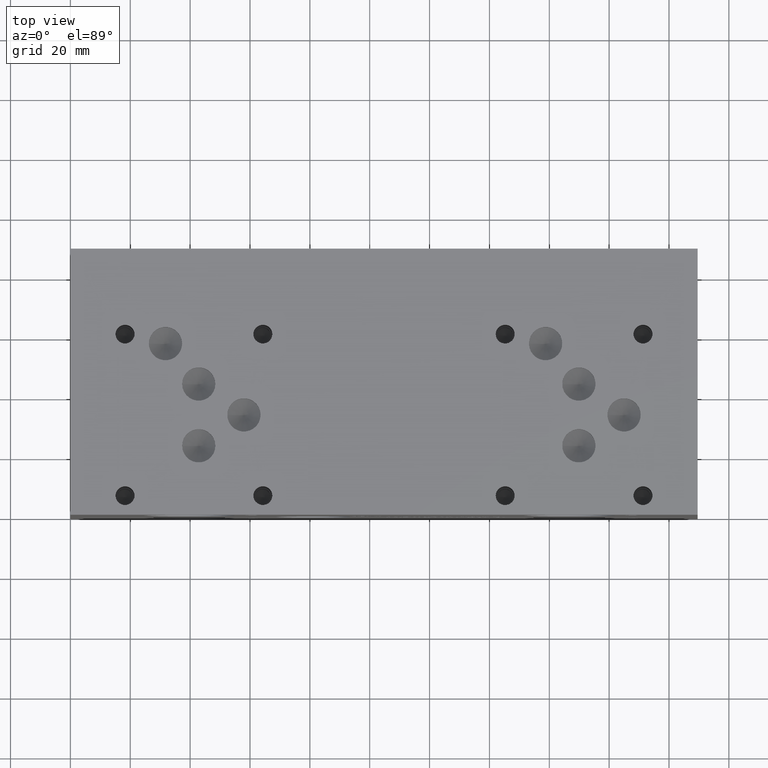
[diagram: clean part render]
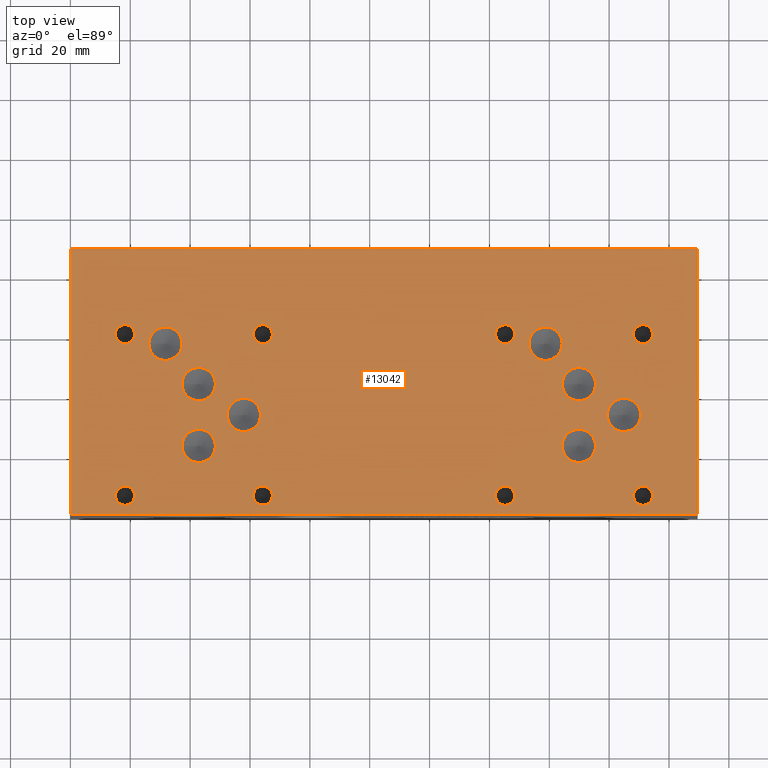
[diagram: same view with one face highlighted and labeled with its STEP entity id]
A machine part, top view. The second image highlights one B-rep face of the part: STEP entity #13042.
In plain terms, the highlighted planar face has unit normal (0, 0, 1).
Its self-contained STEP definition (entity closure, byte-faithful):
#208=CIRCLE('',#13443,5.5626);
#209=CIRCLE('',#13444,5.5626);
#212=CIRCLE('',#13449,5.5626);
#213=CIRCLE('',#13450,5.5626);
#216=CIRCLE('',#13455,5.5626);
#217=CIRCLE('',#13456,5.5626);
#220=CIRCLE('',#13461,5.5626);
#221=CIRCLE('',#13462,5.5626);
#224=CIRCLE('',#13467,5.5626);
#225=CIRCLE('',#13468,5.5626);
#228=CIRCLE('',#13473,5.5626);
#229=CIRCLE('',#13474,5.5626);
#232=CIRCLE('',#13479,5.5626);
#233=CIRCLE('',#13480,5.5626);
#236=CIRCLE('',#13485,5.5626);
#237=CIRCLE('',#13486,5.5626);
#243=CIRCLE('',#13495,3.175);
#244=CIRCLE('',#13496,3.175);
#250=CIRCLE('',#13506,3.175);
#251=CIRCLE('',#13507,3.175);
#257=CIRCLE('',#13517,3.175);
#258=CIRCLE('',#13518,3.175);
#264=CIRCLE('',#13528,3.175);
#265=CIRCLE('',#13529,3.175);
#271=CIRCLE('',#13539,3.175);
#272=CIRCLE('',#13540,3.175);
#278=CIRCLE('',#13550,3.175);
#279=CIRCLE('',#13551,3.175);
#285=CIRCLE('',#13561,3.175);
#286=CIRCLE('',#13562,3.175);
#292=CIRCLE('',#13572,3.175);
#293=CIRCLE('',#13573,3.175);
#565=FACE_BOUND('',#2549,.T.);
#566=FACE_BOUND('',#2550,.T.);
#567=FACE_BOUND('',#2551,.T.);
#568=FACE_BOUND('',#2552,.T.);
#569=FACE_BOUND('',#2553,.T.);
#570=FACE_BOUND('',#2554,.T.);
#571=FACE_BOUND('',#2555,.T.);
#572=FACE_BOUND('',#2556,.T.);
#573=FACE_BOUND('',#2557,.T.);
#574=FACE_BOUND('',#2558,.T.);
#575=FACE_BOUND('',#2559,.T.);
#576=FACE_BOUND('',#2560,.T.);
#577=FACE_BOUND('',#2561,.T.);
#578=FACE_BOUND('',#2562,.T.);
#579=FACE_BOUND('',#2563,.T.);
#580=FACE_BOUND('',#2564,.T.);
#1779=FACE_OUTER_BOUND('',#2548,.T.);
#2548=EDGE_LOOP('',(#11493,#11494,#11495,#11496));
#2549=EDGE_LOOP('',(#11497,#11498));
#2550=EDGE_LOOP('',(#11499,#11500));
#2551=EDGE_LOOP('',(#11501,#11502));
#2552=EDGE_LOOP('',(#11503,#11504));
#2553=EDGE_LOOP('',(#11505,#11506));
#2554=EDGE_LOOP('',(#11507,#11508));
#2555=EDGE_LOOP('',(#11509,#11510));
#2556=EDGE_LOOP('',(#11511,#11512));
#2557=EDGE_LOOP('',(#11513,#11514));
#2558=EDGE_LOOP('',(#11515,#11516));
#2559=EDGE_LOOP('',(#11517,#11518));
#2560=EDGE_LOOP('',(#11519,#11520));
#2561=EDGE_LOOP('',(#11521,#11522));
#2562=EDGE_LOOP('',(#11523,#11524));
#2563=EDGE_LOOP('',(#11525,#11526));
#2564=EDGE_LOOP('',(#11527,#11528));
#2848=LINE('',#19082,#3993);
#3483=LINE('',#21387,#4628);
#3541=LINE('',#21658,#4686);
#3710=LINE('',#22653,#4855);
#3993=VECTOR('',#14295,10.);
#4628=VECTOR('',#15394,10.);
#4686=VECTOR('',#15506,10.);
#4855=VECTOR('',#16641,10.);
#5190=VERTEX_POINT('',#19079);
#5191=VERTEX_POINT('',#19081);
#5701=VERTEX_POINT('',#21385);
#5759=VERTEX_POINT('',#21657);
#5812=VERTEX_POINT('',#21803);
#5813=VERTEX_POINT('',#21804);
#5817=VERTEX_POINT('',#21816);
#5818=VERTEX_POINT('',#21817);
#5822=VERTEX_POINT('',#21829);
#5823=VERTEX_POINT('',#21830);
#5827=VERTEX_POINT('',#21842);
#5828=VERTEX_POINT('',#21843);
#5832=VERTEX_POINT('',#21855);
#5833=VERTEX_POINT('',#21856);
#5837=VERTEX_POINT('',#21868);
#5838=VERTEX_POINT('',#21869);
#5842=VERTEX_POINT('',#21881);
#5843=VERTEX_POINT('',#21882);
#5847=VERTEX_POINT('',#21894);
#5848=VERTEX_POINT('',#21895);
#5855=VERTEX_POINT('',#21914);
#5856=VERTEX_POINT('',#21915);
#5863=VERTEX_POINT('',#21936);
#5864=VERTEX_POINT('',#21937);
#5871=VERTEX_POINT('',#21958);
#5872=VERTEX_POINT('',#21959);
#5879=VERTEX_POINT('',#21980);
#5880=VERTEX_POINT('',#21981);
#5887=VERTEX_POINT('',#22002);
#5888=VERTEX_POINT('',#22003);
#5895=VERTEX_POINT('',#22024);
#5896=VERTEX_POINT('',#22025);
#5903=VERTEX_POINT('',#22046);
#5904=VERTEX_POINT('',#22047);
#5911=VERTEX_POINT('',#22068);
#5912=VERTEX_POINT('',#22069);
#6603=EDGE_CURVE('',#5191,#5190,#2848,.T.);
#7364=EDGE_CURVE('',#5190,#5701,#3483,.T.);
#7446=EDGE_CURVE('',#5759,#5191,#3541,.T.);
#7516=EDGE_CURVE('',#5812,#5813,#208,.T.);
#7517=EDGE_CURVE('',#5813,#5812,#209,.T.);
#7522=EDGE_CURVE('',#5817,#5818,#212,.T.);
#7523=EDGE_CURVE('',#5818,#5817,#213,.T.);
#7528=EDGE_CURVE('',#5822,#5823,#216,.T.);
#7529=EDGE_CURVE('',#5823,#5822,#217,.T.);
#7534=EDGE_CURVE('',#5827,#5828,#220,.T.);
#7535=EDGE_CURVE('',#5828,#5827,#221,.T.);
#7540=EDGE_CURVE('',#5832,#5833,#224,.T.);
#7541=EDGE_CURVE('',#5833,#5832,#225,.T.);
#7546=EDGE_CURVE('',#5837,#5838,#228,.T.);
#7547=EDGE_CURVE('',#5838,#5837,#229,.T.);
#7552=EDGE_CURVE('',#5842,#5843,#232,.T.);
#7553=EDGE_CURVE('',#5843,#5842,#233,.T.);
#7558=EDGE_CURVE('',#5847,#5848,#236,.T.);
#7559=EDGE_CURVE('',#5848,#5847,#237,.T.);
#7567=EDGE_CURVE('',#5855,#5856,#243,.T.);
#7568=EDGE_CURVE('',#5856,#5855,#244,.T.);
#7577=EDGE_CURVE('',#5863,#5864,#250,.T.);
#7578=EDGE_CURVE('',#5864,#5863,#251,.T.);
#7587=EDGE_CURVE('',#5871,#5872,#257,.T.);
#7588=EDGE_CURVE('',#5872,#5871,#258,.T.);
#7597=EDGE_CURVE('',#5879,#5880,#264,.T.);
#7598=EDGE_CURVE('',#5880,#5879,#265,.T.);
#7607=EDGE_CURVE('',#5887,#5888,#271,.T.);
#7608=EDGE_CURVE('',#5888,#5887,#272,.T.);
#7617=EDGE_CURVE('',#5895,#5896,#278,.T.);
#7618=EDGE_CURVE('',#5896,#5895,#279,.T.);
#7627=EDGE_CURVE('',#5903,#5904,#285,.T.);
#7628=EDGE_CURVE('',#5904,#5903,#286,.T.);
#7637=EDGE_CURVE('',#5911,#5912,#292,.T.);
#7638=EDGE_CURVE('',#5912,#5911,#293,.T.);
#7912=EDGE_CURVE('',#5701,#5759,#3710,.T.);
#11493=ORIENTED_EDGE('',*,*,#6603,.T.);
#11494=ORIENTED_EDGE('',*,*,#7364,.T.);
#11495=ORIENTED_EDGE('',*,*,#7912,.T.);
#11496=ORIENTED_EDGE('',*,*,#7446,.T.);
#11497=ORIENTED_EDGE('',*,*,#7516,.T.);
#11498=ORIENTED_EDGE('',*,*,#7517,.T.);
#11499=ORIENTED_EDGE('',*,*,#7522,.T.);
#11500=ORIENTED_EDGE('',*,*,#7523,.T.);
#11501=ORIENTED_EDGE('',*,*,#7528,.T.);
#11502=ORIENTED_EDGE('',*,*,#7529,.T.);
#11503=ORIENTED_EDGE('',*,*,#7534,.T.);
#11504=ORIENTED_EDGE('',*,*,#7535,.T.);
#11505=ORIENTED_EDGE('',*,*,#7540,.T.);
#11506=ORIENTED_EDGE('',*,*,#7541,.T.);
#11507=ORIENTED_EDGE('',*,*,#7546,.T.);
#11508=ORIENTED_EDGE('',*,*,#7547,.T.);
#11509=ORIENTED_EDGE('',*,*,#7552,.T.);
#11510=ORIENTED_EDGE('',*,*,#7553,.T.);
#11511=ORIENTED_EDGE('',*,*,#7558,.T.);
#11512=ORIENTED_EDGE('',*,*,#7559,.T.);
#11513=ORIENTED_EDGE('',*,*,#7567,.T.);
#11514=ORIENTED_EDGE('',*,*,#7568,.T.);
#11515=ORIENTED_EDGE('',*,*,#7577,.T.);
#11516=ORIENTED_EDGE('',*,*,#7578,.T.);
#11517=ORIENTED_EDGE('',*,*,#7587,.T.);
#11518=ORIENTED_EDGE('',*,*,#7588,.T.);
#11519=ORIENTED_EDGE('',*,*,#7597,.T.);
#11520=ORIENTED_EDGE('',*,*,#7598,.T.);
#11521=ORIENTED_EDGE('',*,*,#7607,.T.);
#11522=ORIENTED_EDGE('',*,*,#7608,.T.);
#11523=ORIENTED_EDGE('',*,*,#7617,.T.);
#11524=ORIENTED_EDGE('',*,*,#7618,.T.);
#11525=ORIENTED_EDGE('',*,*,#7627,.T.);
#11526=ORIENTED_EDGE('',*,*,#7628,.T.);
#11527=ORIENTED_EDGE('',*,*,#7637,.T.);
#11528=ORIENTED_EDGE('',*,*,#7638,.T.);
#11889=PLANE('',#13871);
#13042=ADVANCED_FACE('',(#1779,#565,#566,#567,#568,#569,#570,#571,#572,
#573,#574,#575,#576,#577,#578,#579,#580),#11889,.T.);
#13443=AXIS2_PLACEMENT_3D('',#21805,#15656,#15657);
#13444=AXIS2_PLACEMENT_3D('',#21806,#15658,#15659);
#13449=AXIS2_PLACEMENT_3D('',#21818,#15670,#15671);
#13450=AXIS2_PLACEMENT_3D('',#21819,#15672,#15673);
#13455=AXIS2_PLACEMENT_3D('',#21831,#15684,#15685);
#13456=AXIS2_PLACEMENT_3D('',#21832,#15686,#15687);
#13461=AXIS2_PLACEMENT_3D('',#21844,#15698,#15699);
#13462=AXIS2_PLACEMENT_3D('',#21845,#15700,#15701);
#13467=AXIS2_PLACEMENT_3D('',#21857,#15712,#15713);
#13468=AXIS2_PLACEMENT_3D('',#21858,#15714,#15715);
#13473=AXIS2_PLACEMENT_3D('',#21870,#15726,#15727);
#13474=AXIS2_PLACEMENT_3D('',#21871,#15728,#15729);
#13479=AXIS2_PLACEMENT_3D('',#21883,#15740,#15741);
#13480=AXIS2_PLACEMENT_3D('',#21884,#15742,#15743);
#13485=AXIS2_PLACEMENT_3D('',#21896,#15754,#15755);
#13486=AXIS2_PLACEMENT_3D('',#21897,#15756,#15757);
#13495=AXIS2_PLACEMENT_3D('',#21916,#15776,#15777);
#13496=AXIS2_PLACEMENT_3D('',#21917,#15778,#15779);
#13506=AXIS2_PLACEMENT_3D('',#21938,#15801,#15802);
#13507=AXIS2_PLACEMENT_3D('',#21939,#15803,#15804);
#13517=AXIS2_PLACEMENT_3D('',#21960,#15826,#15827);
#13518=AXIS2_PLACEMENT_3D('',#21961,#15828,#15829);
#13528=AXIS2_PLACEMENT_3D('',#21982,#15851,#15852);
#13529=AXIS2_PLACEMENT_3D('',#21983,#15853,#15854);
#13539=AXIS2_PLACEMENT_3D('',#22004,#15876,#15877);
#13540=AXIS2_PLACEMENT_3D('',#22005,#15878,#15879);
#13550=AXIS2_PLACEMENT_3D('',#22026,#15901,#15902);
#13551=AXIS2_PLACEMENT_3D('',#22027,#15903,#15904);
#13561=AXIS2_PLACEMENT_3D('',#22048,#15926,#15927);
#13562=AXIS2_PLACEMENT_3D('',#22049,#15928,#15929);
#13572=AXIS2_PLACEMENT_3D('',#22070,#15951,#15952);
#13573=AXIS2_PLACEMENT_3D('',#22071,#15953,#15954);
#13871=AXIS2_PLACEMENT_3D('',#22656,#16646,#16647);
#14295=DIRECTION('',(1.,0.,0.));
#15394=DIRECTION('',(0.,1.,0.));
#15506=DIRECTION('',(0.,-1.,0.));
#15656=DIRECTION('center_axis',(0.,0.,-1.));
#15657=DIRECTION('ref_axis',(1.,0.,0.));
#15658=DIRECTION('center_axis',(0.,0.,-1.));
#15659=DIRECTION('ref_axis',(1.,0.,0.));
#15670=DIRECTION('center_axis',(0.,0.,-1.));
#15671=DIRECTION('ref_axis',(1.,0.,0.));
#15672=DIRECTION('center_axis',(0.,0.,-1.));
#15673=DIRECTION('ref_axis',(1.,0.,0.));
#15684=DIRECTION('center_axis',(0.,0.,-1.));
#15685=DIRECTION('ref_axis',(1.,0.,0.));
#15686=DIRECTION('center_axis',(0.,0.,-1.));
#15687=DIRECTION('ref_axis',(1.,0.,0.));
#15698=DIRECTION('center_axis',(0.,0.,-1.));
#15699=DIRECTION('ref_axis',(1.,0.,0.));
#15700=DIRECTION('center_axis',(0.,0.,-1.));
#15701=DIRECTION('ref_axis',(1.,0.,0.));
#15712=DIRECTION('center_axis',(0.,0.,-1.));
#15713=DIRECTION('ref_axis',(1.,0.,0.));
#15714=DIRECTION('center_axis',(0.,0.,-1.));
#15715=DIRECTION('ref_axis',(1.,0.,0.));
#15726=DIRECTION('center_axis',(0.,0.,-1.));
#15727=DIRECTION('ref_axis',(1.,0.,0.));
#15728=DIRECTION('center_axis',(0.,0.,-1.));
#15729=DIRECTION('ref_axis',(1.,0.,0.));
#15740=DIRECTION('center_axis',(0.,0.,-1.));
#15741=DIRECTION('ref_axis',(1.,0.,0.));
#15742=DIRECTION('center_axis',(0.,0.,-1.));
#15743=DIRECTION('ref_axis',(1.,0.,0.));
#15754=DIRECTION('center_axis',(0.,0.,-1.));
#15755=DIRECTION('ref_axis',(1.,0.,0.));
#15756=DIRECTION('center_axis',(0.,0.,-1.));
#15757=DIRECTION('ref_axis',(1.,0.,0.));
#15776=DIRECTION('center_axis',(0.,0.,-1.));
#15777=DIRECTION('ref_axis',(1.,0.,0.));
#15778=DIRECTION('center_axis',(0.,0.,-1.));
#15779=DIRECTION('ref_axis',(1.,0.,0.));
#15801=DIRECTION('center_axis',(0.,0.,-1.));
#15802=DIRECTION('ref_axis',(1.,0.,0.));
#15803=DIRECTION('center_axis',(0.,0.,-1.));
#15804=DIRECTION('ref_axis',(1.,0.,0.));
#15826=DIRECTION('center_axis',(0.,0.,-1.));
#15827=DIRECTION('ref_axis',(1.,0.,0.));
#15828=DIRECTION('center_axis',(0.,0.,-1.));
#15829=DIRECTION('ref_axis',(1.,0.,0.));
#15851=DIRECTION('center_axis',(0.,0.,-1.));
#15852=DIRECTION('ref_axis',(1.,0.,0.));
#15853=DIRECTION('center_axis',(0.,0.,-1.));
#15854=DIRECTION('ref_axis',(1.,0.,0.));
#15876=DIRECTION('center_axis',(0.,0.,-1.));
#15877=DIRECTION('ref_axis',(1.,0.,0.));
#15878=DIRECTION('center_axis',(0.,0.,-1.));
#15879=DIRECTION('ref_axis',(1.,0.,0.));
#15901=DIRECTION('center_axis',(0.,0.,-1.));
#15902=DIRECTION('ref_axis',(1.,0.,0.));
#15903=DIRECTION('center_axis',(0.,0.,-1.));
#15904=DIRECTION('ref_axis',(1.,0.,0.));
#15926=DIRECTION('center_axis',(0.,0.,-1.));
#15927=DIRECTION('ref_axis',(1.,0.,0.));
#15928=DIRECTION('center_axis',(0.,0.,-1.));
#15929=DIRECTION('ref_axis',(1.,0.,0.));
#15951=DIRECTION('center_axis',(0.,0.,-1.));
#15952=DIRECTION('ref_axis',(1.,0.,0.));
#15953=DIRECTION('center_axis',(0.,0.,-1.));
#15954=DIRECTION('ref_axis',(1.,0.,0.));
#16641=DIRECTION('',(-1.,0.,0.));
#16646=DIRECTION('center_axis',(0.,0.,1.));
#16647=DIRECTION('ref_axis',(1.,0.,0.));
#19079=CARTESIAN_POINT('',(209.55,0.,88.9));
#19081=CARTESIAN_POINT('',(0.,0.,88.9));
#19082=CARTESIAN_POINT('',(0.,0.,88.9));
#21385=CARTESIAN_POINT('',(209.55,88.9,88.9));
#21387=CARTESIAN_POINT('',(209.55,0.,88.9));
#21657=CARTESIAN_POINT('',(0.,88.9,88.9));
#21658=CARTESIAN_POINT('',(0.,88.9,88.9));
#21803=CARTESIAN_POINT('',(175.4378,43.6372,88.9));
#21804=CARTESIAN_POINT('',(164.3126,43.6372,88.9));
#21805=CARTESIAN_POINT('Origin',(169.8752,43.6372,88.9));
#21806=CARTESIAN_POINT('Origin',(169.8752,43.6372,88.9));
#21816=CARTESIAN_POINT('',(190.5254,33.3248,88.9));
#21817=CARTESIAN_POINT('',(179.4002,33.3248,88.9));
#21818=CARTESIAN_POINT('Origin',(184.9628,33.3248,88.9));
#21819=CARTESIAN_POINT('Origin',(184.9628,33.3248,88.9));
#21829=CARTESIAN_POINT('',(48.4251,43.64228,88.9));
#21830=CARTESIAN_POINT('',(37.2999,43.64228,88.9));
#21831=CARTESIAN_POINT('Origin',(42.8625,43.64228,88.9));
#21832=CARTESIAN_POINT('Origin',(42.8625,43.64228,88.9));
#21842=CARTESIAN_POINT('',(63.5254,33.3248,88.9));
#21843=CARTESIAN_POINT('',(52.4002,33.3248,88.9));
#21844=CARTESIAN_POINT('Origin',(57.9628,33.3248,88.9));
#21845=CARTESIAN_POINT('Origin',(57.9628,33.3248,88.9));
#21855=CARTESIAN_POINT('',(37.3126,57.15,88.9));
#21856=CARTESIAN_POINT('',(26.1874,57.15,88.9));
#21857=CARTESIAN_POINT('Origin',(31.75,57.15,88.9));
#21858=CARTESIAN_POINT('Origin',(31.75,57.15,88.9));
#21868=CARTESIAN_POINT('',(48.43018,23.00732,88.9));
#21869=CARTESIAN_POINT('',(37.30498,23.00732,88.9));
#21870=CARTESIAN_POINT('Origin',(42.86758,23.00732,88.9));
#21871=CARTESIAN_POINT('Origin',(42.86758,23.00732,88.9));
#21881=CARTESIAN_POINT('',(164.3126,57.15,88.9));
#21882=CARTESIAN_POINT('',(153.1874,57.15,88.9));
#21883=CARTESIAN_POINT('Origin',(158.75,57.15,88.9));
#21884=CARTESIAN_POINT('Origin',(158.75,57.15,88.9));
#21894=CARTESIAN_POINT('',(175.4378,23.0124,88.9));
#21895=CARTESIAN_POINT('',(164.3126,23.0124,88.9));
#21896=CARTESIAN_POINT('Origin',(169.8752,23.0124,88.9));
#21897=CARTESIAN_POINT('Origin',(169.8752,23.0124,88.9));
#21914=CARTESIAN_POINT('',(194.4624,6.35,88.9));
#21915=CARTESIAN_POINT('',(188.1124,6.35,88.9));
#21916=CARTESIAN_POINT('Origin',(191.2874,6.35,88.9));
#21917=CARTESIAN_POINT('Origin',(191.2874,6.35,88.9));
#21936=CARTESIAN_POINT('',(148.4122,60.325,88.9));
#21937=CARTESIAN_POINT('',(142.0622,60.325,88.9));
#21938=CARTESIAN_POINT('Origin',(145.2372,60.325,88.9));
#21939=CARTESIAN_POINT('Origin',(145.2372,60.325,88.9));
#21958=CARTESIAN_POINT('',(67.4624,6.3627,88.9));
#21959=CARTESIAN_POINT('',(61.1124,6.3627,88.9));
#21960=CARTESIAN_POINT('Origin',(64.2874,6.3627,88.9));
#21961=CARTESIAN_POINT('Origin',(64.2874,6.3627,88.9));
#21980=CARTESIAN_POINT('',(21.4122,60.325,88.9));
#21981=CARTESIAN_POINT('',(15.0622,60.325,88.9));
#21982=CARTESIAN_POINT('Origin',(18.2372,60.325,88.9));
#21983=CARTESIAN_POINT('Origin',(18.2372,60.325,88.9));
#22002=CARTESIAN_POINT('',(67.4624,60.325,88.9));
#22003=CARTESIAN_POINT('',(61.1124,60.325,88.9));
#22004=CARTESIAN_POINT('Origin',(64.2874,60.325,88.9));
#22005=CARTESIAN_POINT('Origin',(64.2874,60.325,88.9));
#22024=CARTESIAN_POINT('',(21.4122,6.35,88.9));
#22025=CARTESIAN_POINT('',(15.0622,6.35,88.9));
#22026=CARTESIAN_POINT('Origin',(18.2372,6.35,88.9));
#22027=CARTESIAN_POINT('Origin',(18.2372,6.35,88.9));
#22046=CARTESIAN_POINT('',(194.4624,60.325,88.9));
#22047=CARTESIAN_POINT('',(188.1124,60.325,88.9));
#22048=CARTESIAN_POINT('Origin',(191.2874,60.325,88.9));
#22049=CARTESIAN_POINT('Origin',(191.2874,60.325,88.9));
#22068=CARTESIAN_POINT('',(148.4122,6.35,88.9));
#22069=CARTESIAN_POINT('',(142.0622,6.35,88.9));
#22070=CARTESIAN_POINT('Origin',(145.2372,6.35,88.9));
#22071=CARTESIAN_POINT('Origin',(145.2372,6.35,88.9));
#22653=CARTESIAN_POINT('',(209.55,88.9,88.9));
#22656=CARTESIAN_POINT('Origin',(104.775,44.45,88.9));